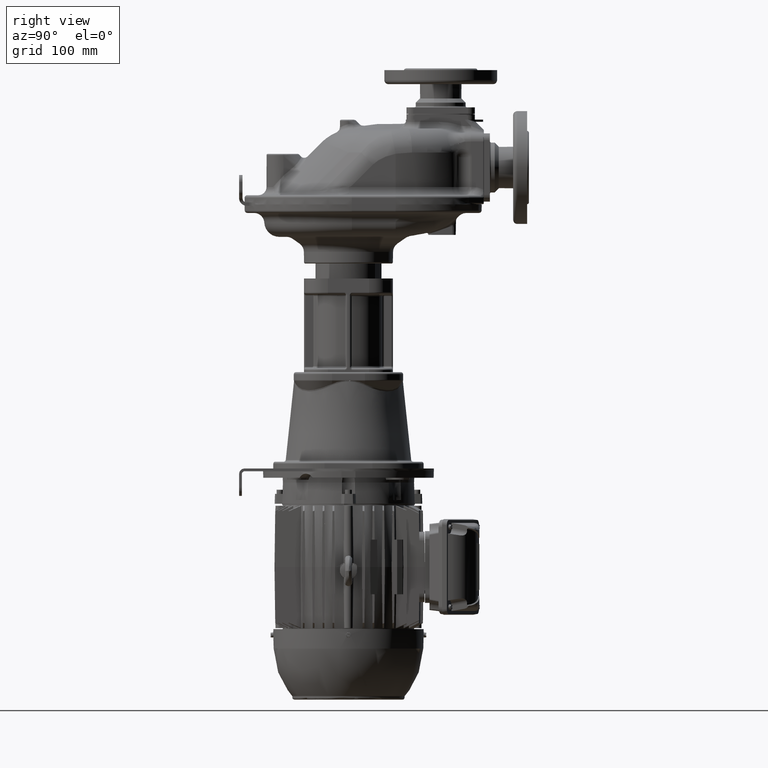
[diagram: clean part render]
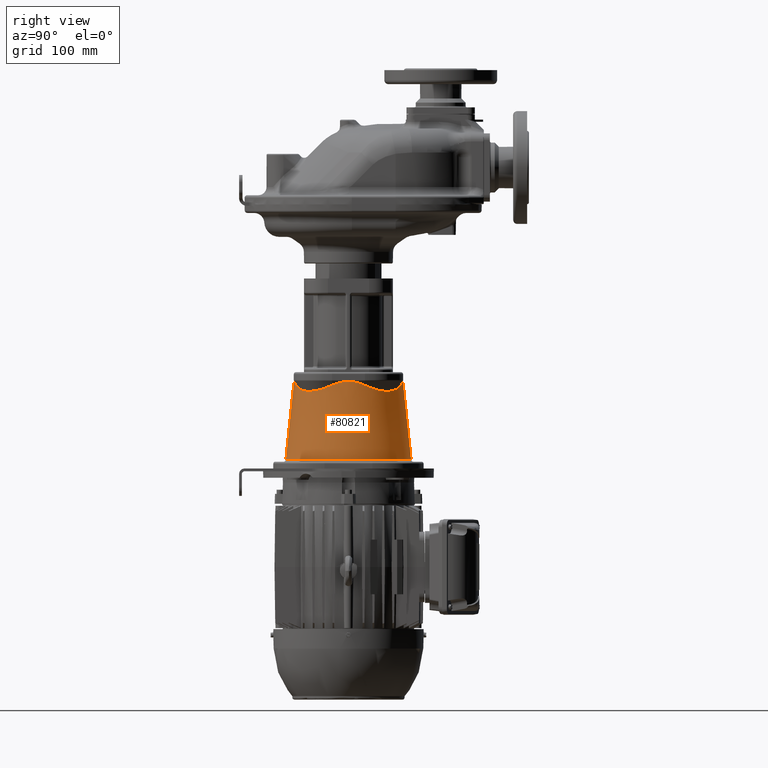
[diagram: same view with one face highlighted and labeled with its STEP entity id]
A machine part, right view. The second image highlights one B-rep face of the part: STEP entity #80821.
In plain terms, the highlighted conical surface has half-angle 6 deg.
Its self-contained STEP definition (entity closure, byte-faithful):
#13734=DIRECTION('',(0.E0,1.045284632720E-1,9.945218953678E-1));
#13735=VECTOR('',#13734,1.154727786723E2);
#13736=CARTESIAN_POINT('',(-4.174019513032E-14,-9.175620440373E1,
-3.773135853898E2));
#13737=LINE('',#13736,#13735);
#13738=CARTESIAN_POINT('',(9.448413889804E0,-7.923357628492E1,
-2.635097378124E2));
#13739=CARTESIAN_POINT('',(8.944865390985E0,-7.928397269742E1,
-2.634185644123E2));
#13740=CARTESIAN_POINT('',(7.981260820815E0,-7.937131314393E1,
-2.632495163003E2));
#13741=CARTESIAN_POINT('',(6.667328633573E0,-7.946941529494E1,
-2.630379740285E2));
#13742=CARTESIAN_POINT('',(5.484209309624E0,-7.954129156414E1,
-2.628680613803E2));
#13743=CARTESIAN_POINT('',(4.415192710407E0,-7.959335688235E1,
-2.627353220893E2));
#13744=CARTESIAN_POINT('',(3.434843384792E0,-7.963072188398E1,
-2.626341095028E2));
#13745=CARTESIAN_POINT('',(2.521193531791E0,-7.965686252494E1,
-2.625598937228E2));
#13746=CARTESIAN_POINT('',(1.654426537029E0,-7.967411147134E1,
-2.625092116402E2));
#13747=CARTESIAN_POINT('',(8.171873724442E-1,-7.968392373610E1,
-2.624797247375E2));
#13748=CARTESIAN_POINT('',(2.700712224523E-1,-7.968601232285E1,
-2.624733789962E2));
#13749=CARTESIAN_POINT('',(0.E0,-7.968601229936E1,-2.624733786812E2));
#13751=CARTESIAN_POINT('',(2.313970011329E1,-7.684120001109E1,
-2.678365913313E2));
#13752=CARTESIAN_POINT('',(2.274491774257E1,-7.694039552599E1,
-2.676572296166E2));
#13753=CARTESIAN_POINT('',(2.195793422997E1,-7.713274968255E1,
-2.673094110638E2));
#13754=CARTESIAN_POINT('',(2.078604550276E1,-7.740344576012E1,
-2.668199054467E2));
#13755=CARTESIAN_POINT('',(1.962221587909E1,-7.765689667984E1,
-2.663615607914E2));
#13756=CARTESIAN_POINT('',(1.846615493525E1,-7.789359695793E1,
-2.659334867523E2));
#13757=CARTESIAN_POINT('',(1.731743377083E1,-7.811403878783E1,
-2.655347978903E2));
#13758=CARTESIAN_POINT('',(1.617565291413E1,-7.831867240501E1,
-2.651646836034E2));
#13759=CARTESIAN_POINT('',(1.504040862414E1,-7.850791668127E1,
-2.648223900599E2));
#13760=CARTESIAN_POINT('',(1.391125331790E1,-7.868216465466E1,
-2.645072092538E2));
#13761=CARTESIAN_POINT('',(1.278783651194E1,-7.884176415054E1,
-2.642185150244E2));
#13762=CARTESIAN_POINT('',(1.166963719120E1,-7.898705715766E1,
-2.639556907804E2));
#13763=CARTESIAN_POINT('',(1.055628288678E1,-7.911833430233E1,
-2.637182137603E2));
#13764=CARTESIAN_POINT('',(9.817150191519E0,-7.919667194758E1,
-2.635764993014E2));
#13765=CARTESIAN_POINT('',(9.448413889804E0,-7.923357628492E1,
-2.635097378124E2));
#13767=CARTESIAN_POINT('',(7.684120001117E1,-2.313970011331E1,
-2.678365913312E2));
#13768=CARTESIAN_POINT('',(7.671763376627E1,-2.363147390947E1,
-2.680600192820E2));
#13769=CARTESIAN_POINT('',(7.646172203402E1,-2.460779515536E1,
-2.684983263072E2));
#13770=CARTESIAN_POINT('',(7.605253146579E1,-2.605008068724E1,
-2.691300484272E2));
#13771=CARTESIAN_POINT('',(7.561893479061E1,-2.747002089464E1,
-2.697361198877E2));
#13772=CARTESIAN_POINT('',(7.516185256211E1,-2.886742068809E1,
-2.703166209158E2));
#13773=CARTESIAN_POINT('',(7.468217152596E1,-3.024217188916E1,
-2.708716807236E2));
#13774=CARTESIAN_POINT('',(7.418072507685E1,-3.159428036620E1,
-2.714014848061E2));
#13775=CARTESIAN_POINT('',(7.365831712722E1,-3.292378207235E1,
-2.719062372455E2));
#13776=CARTESIAN_POINT('',(7.311570378033E1,-3.423078353565E1,
-2.723861751111E2));
#13777=CARTESIAN_POINT('',(7.255359655863E1,-3.551544011220E1,
-2.728415568823E2));
#13778=CARTESIAN_POINT('',(7.197266044798E1,-3.677795216226E1,
-2.732726586269E2));
#13779=CARTESIAN_POINT('',(7.137351147777E1,-3.801856211141E1,
-2.736797703323E2));
#13780=CARTESIAN_POINT('',(7.075671686855E1,-3.923754698333E1,
-2.740631908921E2));
#13781=CARTESIAN_POINT('',(7.012279422579E1,-4.043521417859E1,
-2.744232247350E2));
#13782=CARTESIAN_POINT('',(6.947221163011E1,-4.161189608840E1,
-2.747601777472E2));
#13783=CARTESIAN_POINT('',(6.880538779571E1,-4.276794546425E1,
-2.750743537889E2));
#13784=CARTESIAN_POINT('',(6.812269252375E1,-4.390373092713E1,
-2.753660514631E2));
#13785=CARTESIAN_POINT('',(6.742444735643E1,-4.501963272618E1,
-2.756355610693E2));
#13786=CARTESIAN_POINT('',(6.671092676160E1,-4.611603834752E1,
-2.758831623700E2));
#13787=CARTESIAN_POINT('',(6.598235892279E1,-4.719333910555E1,
-2.761091220044E2));
#13788=CARTESIAN_POINT('',(6.523892699136E1,-4.825192644493E1,
-2.763136911565E2));
#13789=CARTESIAN_POINT('',(6.448077033492E1,-4.929218868331E1,
-2.764971036456E2));
#13790=CARTESIAN_POINT('',(6.370798577346E1,-5.031450805999E1,
-2.766595741377E2));
#13791=CARTESIAN_POINT('',(6.292062927522E1,-5.131925756626E1,
-2.768012970623E2));
#13792=CARTESIAN_POINT('',(6.211871731898E1,-5.230679844082E1,
-2.769224454561E2));
#13793=CARTESIAN_POINT('',(6.130222830068E1,-5.327747770535E1,
-2.770231694082E2));
#13794=CARTESIAN_POINT('',(6.047110406697E1,-5.423162583006E1,
-2.771035952439E2));
#13795=CARTESIAN_POINT('',(5.962525148923E1,-5.516955449105E1,
-2.771638246925E2));
#13796=CARTESIAN_POINT('',(5.876454431134E1,-5.609155424491E1,
-2.772039344654E2));
#13797=CARTESIAN_POINT('',(5.788882422107E1,-5.699789323294E1,
-2.772239764265E2));
#13798=CARTESIAN_POINT('',(5.699790278925E1,-5.788881483098E1,
-2.772239765356E2));
#13799=CARTESIAN_POINT('',(5.609156343654E1,-5.876453558912E1,
-2.772039347734E2));
#13800=CARTESIAN_POINT('',(5.516956313835E1,-5.962524356203E1,
-2.771638251639E2));
#13801=CARTESIAN_POINT('',(5.423163397162E1,-6.047109685725E1,
-2.771035958525E2));
#13802=CARTESIAN_POINT('',(5.327748532113E1,-6.130222178804E1,
-2.770231701286E2));
#13803=CARTESIAN_POINT('',(5.230680552059E1,-6.211871147390E1,
-2.769224462624E2));
#13804=CARTESIAN_POINT('',(5.131926410906E1,-6.292062406192E1,
-2.768012979301E2));
#13805=CARTESIAN_POINT('',(5.031451406265E1,-6.370798115920E1,
-2.766595750428E2));
#13806=CARTESIAN_POINT('',(4.929219414889E1,-6.448076628340E1,
-2.764971045650E2));
#13807=CARTESIAN_POINT('',(4.825193137930E1,-6.523892346618E1,
-2.763136920714E2));
#13808=CARTESIAN_POINT('',(4.719334351729E1,-6.598235588718E1,
-2.761091228968E2));
#13809=CARTESIAN_POINT('',(4.611604224882E1,-6.671092417801E1,
-2.758831632233E2));
#13810=CARTESIAN_POINT('',(4.501963613323E1,-6.742444518661E1,
-2.756355618689E2));
#13811=CARTESIAN_POINT('',(4.390373385953E1,-6.812269072931E1,
-2.753660521963E2));
#13812=CARTESIAN_POINT('',(4.276794794384E1,-6.880538633928E1,
-2.750743544463E2));
#13813=CARTESIAN_POINT('',(4.161189814075E1,-6.947221047444E1,
-2.747601783221E2));
#13814=CARTESIAN_POINT('',(4.043521583227E1,-7.012279333429E1,
-2.744232252225E2));
#13815=CARTESIAN_POINT('',(3.923754826985E1,-7.075671620554E1,
-2.740631912899E2));
#13816=CARTESIAN_POINT('',(3.801856306556E1,-7.137351100852E1,
-2.736797706404E2));
#13817=CARTESIAN_POINT('',(3.677795282115E1,-7.197266013944E1,
-2.732726588486E2));
#13818=CARTESIAN_POINT('',(3.551544051465E1,-7.255359637983E1,
-2.728415570234E2));
#13819=CARTESIAN_POINT('',(3.423078372171E1,-7.311570370248E1,
-2.723861751792E2));
#13820=CARTESIAN_POINT('',(3.292378208579E1,-7.365831712291E1,
-2.719062372512E2));
#13821=CARTESIAN_POINT('',(3.159428025172E1,-7.418072512133E1,
-2.714014847623E2));
#13822=CARTESIAN_POINT('',(3.024217168829E1,-7.468217159870E1,
-2.708716806438E2));
#13823=CARTESIAN_POINT('',(2.886742044951E1,-7.516185264279E1,
-2.703166208183E2));
#13824=CARTESIAN_POINT('',(2.747002067881E1,-7.561893485854E1,
-2.697361197965E2));
#13825=CARTESIAN_POINT('',(2.605008048906E1,-7.605253152437E1,
-2.691300483418E2));
#13826=CARTESIAN_POINT('',(2.460779493984E1,-7.646172209216E1,
-2.684983262107E2));
#13827=CARTESIAN_POINT('',(2.363147382289E1,-7.671763378837E1,
-2.680600192437E2));
#13828=CARTESIAN_POINT('',(2.313970011329E1,-7.684120001109E1,
-2.678365913313E2));
#13830=CARTESIAN_POINT('',(7.923357628491E1,-9.448413889803E0,
-2.635097378124E2));
#13831=CARTESIAN_POINT('',(7.919667194939E1,-9.817150174091E0,
-2.635764992979E2));
#13832=CARTESIAN_POINT('',(7.911833430792E1,-1.055628283503E1,
-2.637182137504E2));
#13833=CARTESIAN_POINT('',(7.898705716949E1,-1.166963709380E1,
-2.639556907587E2));
#13834=CARTESIAN_POINT('',(7.884176417049E1,-1.278783636453E1,
-2.642185149885E2));
#13835=CARTESIAN_POINT('',(7.868216467532E1,-1.391125317952E1,
-2.645072092163E2));
#13836=CARTESIAN_POINT('',(7.850791669515E1,-1.504040853912E1,
-2.648223900350E2));
#13837=CARTESIAN_POINT('',(7.831867241037E1,-1.617565288498E1,
-2.651646835937E2));
#13838=CARTESIAN_POINT('',(7.811403877834E1,-1.731743382326E1,
-2.655347979074E2));
#13839=CARTESIAN_POINT('',(7.789359693780E1,-1.846615503854E1,
-2.659334867884E2));
#13840=CARTESIAN_POINT('',(7.765689663319E1,-1.962221610224E1,
-2.663615608762E2));
#13841=CARTESIAN_POINT('',(7.740344570125E1,-2.078604576441E1,
-2.668199055527E2));
#13842=CARTESIAN_POINT('',(7.713274964367E1,-2.195793439041E1,
-2.673094111348E2));
#13843=CARTESIAN_POINT('',(7.694039551072E1,-2.274491780505E1,
-2.676572296437E2));
#13844=CARTESIAN_POINT('',(7.684120001117E1,-2.313970011331E1,
-2.678365913312E2));
#13846=CARTESIAN_POINT('',(7.923357628456E1,9.448413889761E0,
-2.635097378125E2));
#13847=CARTESIAN_POINT('',(7.928689449168E1,8.915671914472E0,
-2.634132790041E2));
#13848=CARTESIAN_POINT('',(7.937848935146E1,7.898766737526E0,
-2.632352309853E2));
#13849=CARTESIAN_POINT('',(7.947954581984E1,6.519889597097E0,
-2.630151985128E2));
#13850=CARTESIAN_POINT('',(7.955200329106E1,5.288015927278E0,
-2.628416776922E2));
#13851=CARTESIAN_POINT('',(7.960346977963E1,4.178723952025E0,
-2.627085788158E2));
#13852=CARTESIAN_POINT('',(7.963953788033E1,3.162816631961E0,
-2.626094773983E2));
#13853=CARTESIAN_POINT('',(7.966394465011E1,2.214508611121E0,
-2.625392869282E2));
#13854=CARTESIAN_POINT('',(7.967907333241E1,1.311420479860E0,
-2.624943743207E2));
#13855=CARTESIAN_POINT('',(7.968631609622E1,4.343102093750E-1,
-2.624724669255E2));
#13856=CARTESIAN_POINT('',(7.968631604881E1,-4.343219626638E-1,
-2.624724670813E2));
#13857=CARTESIAN_POINT('',(7.967907318655E1,-1.311432348766E0,
-2.624943747868E2));
#13858=CARTESIAN_POINT('',(7.966394439482E1,-2.214520738800E0,
-2.625392876879E2));
#13859=CARTESIAN_POINT('',(7.963953748288E1,-3.162829734417E0,
-2.626094785082E2));
#13860=CARTESIAN_POINT('',(7.960346919087E1,-4.178738330481E0,
-2.627085803802E2));
#13861=CARTESIAN_POINT('',(7.955200250754E1,-5.288031067866E0,
-2.628416796608E2));
#13862=CARTESIAN_POINT('',(7.947954466161E1,-6.519906846246E0,
-2.630152011394E2));
#13863=CARTESIAN_POINT('',(7.937848865107E1,-7.898774652268E0,
-2.632352323851E2));
#13864=CARTESIAN_POINT('',(7.928689419822E1,-8.915674843036E0,
-2.634132795150E2));
#13865=CARTESIAN_POINT('',(7.923357628491E1,-9.448413889803E0,
-2.635097378124E2));
#13867=CARTESIAN_POINT('',(7.684120001110E1,2.313970011329E1,
-2.678365913313E2));
#13868=CARTESIAN_POINT('',(7.694039552557E1,2.274491774424E1,
-2.676572296174E2));
#13869=CARTESIAN_POINT('',(7.713274968150E1,2.195793423435E1,
-2.673094110657E2));
#13870=CARTESIAN_POINT('',(7.740344575874E1,2.078604550890E1,
-2.668199054492E2));
#13871=CARTESIAN_POINT('',(7.765689667842E1,1.962221588581E1,
-2.663615607940E2));
#13872=CARTESIAN_POINT('',(7.789359695642E1,1.846615494286E1,
-2.659334867550E2));
#13873=CARTESIAN_POINT('',(7.811403878616E1,1.731743377977E1,
-2.655347978933E2));
#13874=CARTESIAN_POINT('',(7.831867240334E1,1.617565292378E1,
-2.651646836064E2));
#13875=CARTESIAN_POINT('',(7.850791667957E1,1.504040863473E1,
-2.648223900630E2));
#13876=CARTESIAN_POINT('',(7.868216465296E1,1.391125332938E1,
-2.645072092569E2));
#13877=CARTESIAN_POINT('',(7.884176414923E1,1.278783652165E1,
-2.642185150268E2));
#13878=CARTESIAN_POINT('',(7.898705715608E1,1.166963720350E1,
-2.639556907832E2));
#13879=CARTESIAN_POINT('',(7.911833430150E1,1.055628289595E1,
-2.637182137621E2));
#13880=CARTESIAN_POINT('',(7.919667194685E1,9.817150195125E0,
-2.635764993021E2));
#13881=CARTESIAN_POINT('',(7.923357628456E1,9.448413889761E0,
-2.635097378125E2));
#13883=CARTESIAN_POINT('',(2.313970011332E1,7.684120001116E1,
-2.678365913313E2));
#13884=CARTESIAN_POINT('',(2.363147390936E1,7.671763376630E1,
-2.680600192819E2));
#13885=CARTESIAN_POINT('',(2.460779515510E1,7.646172203409E1,
-2.684983263071E2));
#13886=CARTESIAN_POINT('',(2.605008068711E1,7.605253146583E1,
-2.691300484272E2));
#13887=CARTESIAN_POINT('',(2.747002089454E1,7.561893479064E1,
-2.697361198876E2));
#13888=CARTESIAN_POINT('',(2.886742068797E1,7.516185256215E1,
-2.703166209157E2));
#13889=CARTESIAN_POINT('',(3.024217188903E1,7.468217152601E1,
-2.708716807235E2));
#13890=CARTESIAN_POINT('',(3.159428036614E1,7.418072507687E1,
-2.714014848061E2));
#13891=CARTESIAN_POINT('',(3.292378207240E1,7.365831712720E1,
-2.719062372455E2));
#13892=CARTESIAN_POINT('',(3.423078353564E1,7.311570378033E1,
-2.723861751111E2));
#13893=CARTESIAN_POINT('',(3.551544011216E1,7.255359655865E1,
-2.728415568823E2));
#13894=CARTESIAN_POINT('',(3.677795216228E1,7.197266044797E1,
-2.732726586269E2));
#13895=CARTESIAN_POINT('',(3.801856211126E1,7.137351147784E1,
-2.736797703322E2));
#13896=CARTESIAN_POINT('',(3.923754698314E1,7.075671686865E1,
-2.740631908920E2));
#13897=CARTESIAN_POINT('',(4.043521417848E1,7.012279422585E1,
-2.744232247349E2));
#13898=CARTESIAN_POINT('',(4.161189608826E1,6.947221163019E1,
-2.747601777472E2));
#13899=CARTESIAN_POINT('',(4.276794546405E1,6.880538779582E1,
-2.750743537889E2));
#13900=CARTESIAN_POINT('',(4.390373092718E1,6.812269252372E1,
-2.753660514631E2));
#13901=CARTESIAN_POINT('',(4.501963272600E1,6.742444735654E1,
-2.756355610692E2));
#13902=CARTESIAN_POINT('',(4.611603834717E1,6.671092676183E1,
-2.758831623699E2));
#13903=CARTESIAN_POINT('',(4.719333910537E1,6.598235892292E1,
-2.761091220044E2));
#13904=CARTESIAN_POINT('',(4.825192644479E1,6.523892699145E1,
-2.763136911565E2));
#13905=CARTESIAN_POINT('',(4.929218868291E1,6.448077033521E1,
-2.764971036455E2));
#13906=CARTESIAN_POINT('',(5.031450805994E1,6.370798577350E1,
-2.766595741377E2));
#13907=CARTESIAN_POINT('',(5.131925756627E1,6.292062927521E1,
-2.768012970623E2));
#13908=CARTESIAN_POINT('',(5.230679844048E1,6.211871731925E1,
-2.769224454560E2));
#13909=CARTESIAN_POINT('',(5.327747770496E1,6.130222830101E1,
-2.770231694081E2));
#13910=CARTESIAN_POINT('',(5.423162582996E1,6.047110406706E1,
-2.771035952439E2));
#13911=CARTESIAN_POINT('',(5.516955449072E1,5.962525148953E1,
-2.771638246924E2));
#13912=CARTESIAN_POINT('',(5.609155424441E1,5.876454431182E1,
-2.772039344654E2));
#13913=CARTESIAN_POINT('',(5.699789323292E1,5.788882422110E1,
-2.772239764265E2));
#13914=CARTESIAN_POINT('',(5.788881483096E1,5.699790278927E1,
-2.772239765356E2));
#13915=CARTESIAN_POINT('',(5.876453558867E1,5.609156343701E1,
-2.772039347734E2));
#13916=CARTESIAN_POINT('',(5.962524356177E1,5.516956313864E1,
-2.771638251639E2));
#13917=CARTESIAN_POINT('',(6.047109685721E1,5.423163397167E1,
-2.771035958525E2));
#13918=CARTESIAN_POINT('',(6.130222178774E1,5.327748532148E1,
-2.770231701286E2));
#13919=CARTESIAN_POINT('',(6.211871147365E1,5.230680552090E1,
-2.769224462624E2));
#13920=CARTESIAN_POINT('',(6.292062406195E1,5.131926410903E1,
-2.768012979301E2));
#13921=CARTESIAN_POINT('',(6.370798115917E1,5.031451406269E1,
-2.766595750428E2));
#13922=CARTESIAN_POINT('',(6.448076628312E1,4.929219414927E1,
-2.764971045651E2));
#13923=CARTESIAN_POINT('',(6.523892346610E1,4.825193137941E1,
-2.763136920714E2));
#13924=CARTESIAN_POINT('',(6.598235588708E1,4.719334351744E1,
-2.761091228968E2));
#13925=CARTESIAN_POINT('',(6.671092417780E1,4.611604224914E1,
-2.758831632234E2));
#13926=CARTESIAN_POINT('',(6.742444518651E1,4.501963613339E1,
-2.756355618690E2));
#13927=CARTESIAN_POINT('',(6.812269072934E1,4.390373385947E1,
-2.753660521962E2));
#13928=CARTESIAN_POINT('',(6.880538633918E1,4.276794794402E1,
-2.750743544464E2));
#13929=CARTESIAN_POINT('',(6.947221047437E1,4.161189814088E1,
-2.747601783221E2));
#13930=CARTESIAN_POINT('',(7.012279333423E1,4.043521583237E1,
-2.744232252225E2));
#13931=CARTESIAN_POINT('',(7.075671620544E1,3.923754827004E1,
-2.740631912899E2));
#13932=CARTESIAN_POINT('',(7.137351100846E1,3.801856306569E1,
-2.736797706405E2));
#13933=CARTESIAN_POINT('',(7.197266013945E1,3.677795282113E1,
-2.732726588486E2));
#13934=CARTESIAN_POINT('',(7.255359637981E1,3.551544051469E1,
-2.728415570234E2));
#13935=CARTESIAN_POINT('',(7.311570370248E1,3.423078372172E1,
-2.723861751792E2));
#13936=CARTESIAN_POINT('',(7.365831712294E1,3.292378208574E1,
-2.719062372512E2));
#13937=CARTESIAN_POINT('',(7.418072512131E1,3.159428025177E1,
-2.714014847623E2));
#13938=CARTESIAN_POINT('',(7.468217159865E1,3.024217168841E1,
-2.708716806439E2));
#13939=CARTESIAN_POINT('',(7.516185264275E1,2.886742044963E1,
-2.703166208184E2));
#13940=CARTESIAN_POINT('',(7.561893485851E1,2.747002067891E1,
-2.697361197965E2));
#13941=CARTESIAN_POINT('',(7.605253152433E1,2.605008048920E1,
-2.691300483419E2));
#13942=CARTESIAN_POINT('',(7.646172209209E1,2.460779494012E1,
-2.684983262108E2));
#13943=CARTESIAN_POINT('',(7.671763378834E1,2.363147382301E1,
-2.680600192437E2));
#13944=CARTESIAN_POINT('',(7.684120001110E1,2.313970011329E1,
-2.678365913313E2));
#13946=CARTESIAN_POINT('',(9.448413889852E0,7.923357628533E1,
-2.635097378124E2));
#13947=CARTESIAN_POINT('',(9.817150170483E0,7.919667195017E1,
-2.635764992972E2));
#13948=CARTESIAN_POINT('',(1.055628282585E1,7.911833430873E1,
-2.637182137486E2));
#13949=CARTESIAN_POINT('',(1.166963708150E1,7.898705717107E1,
-2.639556907559E2));
#13950=CARTESIAN_POINT('',(1.278783635483E1,7.884176417180E1,
-2.642185149861E2));
#13951=CARTESIAN_POINT('',(1.391125316805E1,7.868216467702E1,
-2.645072092133E2));
#13952=CARTESIAN_POINT('',(1.504040852853E1,7.850791669686E1,
-2.648223900319E2));
#13953=CARTESIAN_POINT('',(1.617565287533E1,7.831867241204E1,
-2.651646835907E2));
#13954=CARTESIAN_POINT('',(1.731743381433E1,7.811403878E1,-2.655347979044E2));
#13955=CARTESIAN_POINT('',(1.846615503093E1,7.789359693931E1,
-2.659334867857E2));
#13956=CARTESIAN_POINT('',(1.962221609551E1,7.765689663461E1,
-2.663615608736E2));
#13957=CARTESIAN_POINT('',(2.078604575825E1,7.740344570264E1,
-2.668199055501E2));
#13958=CARTESIAN_POINT('',(2.195793438600E1,7.713274964473E1,
-2.673094111329E2));
#13959=CARTESIAN_POINT('',(2.274491780337E1,7.694039551115E1,
-2.676572296430E2));
#13960=CARTESIAN_POINT('',(2.313970011332E1,7.684120001116E1,
-2.678365913313E2));
#13962=CARTESIAN_POINT('',(-1.476329341194E-14,7.968601229936E1,
-2.624733786812E2));
#13963=CARTESIAN_POINT('',(2.700761855400E-1,7.968601233353E1,
-2.624733791131E2));
#13964=CARTESIAN_POINT('',(8.172017403881E-1,7.968392370900E1,
-2.624797247106E2));
#13965=CARTESIAN_POINT('',(1.654480761690E0,7.967411065917E1,
-2.625092140426E2));
#13966=CARTESIAN_POINT('',(2.521231413653E0,7.965686150717E1,
-2.625598966211E2));
#13967=CARTESIAN_POINT('',(3.434851743570E0,7.963072153949E1,
-2.626341104390E2));
#13968=CARTESIAN_POINT('',(4.415191703796E0,7.959335692413E1,
-2.627353219932E2));
#13969=CARTESIAN_POINT('',(5.484210444754E0,7.954129150888E1,
-2.628680615098E2));
#13970=CARTESIAN_POINT('',(6.667331703840E0,7.946941510569E1,
-2.630379744460E2));
#13971=CARTESIAN_POINT('',(7.981268710266E0,7.937131249330E1,
-2.632495176348E2));
#13972=CARTESIAN_POINT('',(8.944868764927E0,7.928397235928E1,
-2.634185650008E2));
#13973=CARTESIAN_POINT('',(9.448413889852E0,7.923357628533E1,
-2.635097378124E2));
#13975=DIRECTION('',(0.E0,-1.045284632720E-1,9.945218953678E-1));
#13976=VECTOR('',#13975,1.154727786723E2);
#13977=CARTESIAN_POINT('',(0.E0,9.175620440373E1,-3.773135853898E2));
#13978=LINE('',#13977,#13976);
#13979=CARTESIAN_POINT('',(-1.437753438200E-14,4.318027762775E-14,
-3.773135853898E2));
#13980=DIRECTION('',(0.E0,0.E0,1.E0));
#13981=DIRECTION('',(0.E0,-1.E0,0.E0));
#13982=AXIS2_PLACEMENT_3D('',#13979,#13980,#13981);
#54272=CARTESIAN_POINT('',(-1.463296363993E-14,9.175620440373E1,
-3.773135853898E2));
#54273=VERTEX_POINT('',#54272);
#54376=VERTEX_POINT('',#13962);
#54377=VERTEX_POINT('',#13973);
#54379=VERTEX_POINT('',#13960);
#54381=VERTEX_POINT('',#13944);
#54383=VERTEX_POINT('',#13881);
#54385=VERTEX_POINT('',#13865);
#54387=VERTEX_POINT('',#13844);
#54389=VERTEX_POINT('',#13828);
#54391=VERTEX_POINT('',#13765);
#54393=VERTEX_POINT('',#13749);
#54406=CARTESIAN_POINT('',(0.E0,-9.175620440373E1,-3.773135853898E2));
#54407=VERTEX_POINT('',#54406);
#80801=CARTESIAN_POINT('',(-1.437753438200E-14,3.263229768030E-14,
-3.198930569849E2));
#80802=DIRECTION('',(0.E0,0.E0,-1.E0));
#80803=DIRECTION('',(0.E0,-1.E0,0.E0));
#80804=AXIS2_PLACEMENT_3D('',#80801,#80802,#80803);
#80805=CONICAL_SURFACE('',#80804,8.572106367719E1,6.E0);
#80807=ORIENTED_EDGE('',*,*,#80806,.F.);
#80808=ORIENTED_EDGE('',*,*,#80775,.T.);
#80809=ORIENTED_EDGE('',*,*,#79559,.F.);
#80810=ORIENTED_EDGE('',*,*,#79630,.F.);
#80811=ORIENTED_EDGE('',*,*,#79892,.F.);
#80812=ORIENTED_EDGE('',*,*,#79962,.F.);
#80813=ORIENTED_EDGE('',*,*,#80100,.F.);
#80814=ORIENTED_EDGE('',*,*,#80170,.F.);
#80815=ORIENTED_EDGE('',*,*,#80432,.F.);
#80816=ORIENTED_EDGE('',*,*,#80502,.F.);
#80817=ORIENTED_EDGE('',*,*,#80609,.F.);
#80818=ORIENTED_EDGE('',*,*,#80779,.F.);
#80819=EDGE_LOOP('',(#80807,#80808,#80809,#80810,#80811,#80812,#80813,#80814,
#80815,#80816,#80817,#80818));
#80820=FACE_OUTER_BOUND('',#80819,.F.);
#13750=B_SPLINE_CURVE_WITH_KNOTS('',3,(#13738,#13739,#13740,#13741,#13742,
#13743,#13744,#13745,#13746,#13747,#13748,#13749),.UNSPECIFIED.,.F.,.F.,(4,1,1,
1,1,1,1,1,1,4),(0.E0,1.111111111111E-1,2.222222222222E-1,3.333333333333E-1,
4.444444444444E-1,5.555555555556E-1,6.666666666667E-1,7.777777777778E-1,
8.888888888889E-1,1.E0),.UNSPECIFIED.);
#13766=B_SPLINE_CURVE_WITH_KNOTS('',3,(#13751,#13752,#13753,#13754,#13755,
#13756,#13757,#13758,#13759,#13760,#13761,#13762,#13763,#13764,#13765),
.UNSPECIFIED.,.F.,.F.,(4,1,1,1,1,1,1,1,1,1,1,1,4),(0.E0,8.333333333333E-2,
1.666666666667E-1,2.5E-1,3.333333333333E-1,4.166666666667E-1,5.E-1,
5.833333333333E-1,6.666666666667E-1,7.5E-1,8.333333333333E-1,9.166666666667E-1,
1.E0),.UNSPECIFIED.);
#13829=B_SPLINE_CURVE_WITH_KNOTS('',3,(#13767,#13768,#13769,#13770,#13771,
#13772,#13773,#13774,#13775,#13776,#13777,#13778,#13779,#13780,#13781,#13782,
#13783,#13784,#13785,#13786,#13787,#13788,#13789,#13790,#13791,#13792,#13793,
#13794,#13795,#13796,#13797,#13798,#13799,#13800,#13801,#13802,#13803,#13804,
#13805,#13806,#13807,#13808,#13809,#13810,#13811,#13812,#13813,#13814,#13815,
#13816,#13817,#13818,#13819,#13820,#13821,#13822,#13823,#13824,#13825,#13826,
#13827,#13828),.UNSPECIFIED.,.F.,.F.,(4,1,1,1,1,1,1,1,1,1,1,1,1,1,1,1,1,1,1,1,1,
1,1,1,1,1,1,1,1,1,1,1,1,1,1,1,1,1,1,1,1,1,1,1,1,1,1,1,1,1,1,1,1,1,1,1,1,1,1,4),(
0.E0,1.694915254237E-2,3.389830508475E-2,5.084745762712E-2,6.779661016949E-2,
8.474576271186E-2,1.016949152542E-1,1.186440677966E-1,1.355932203390E-1,
1.525423728814E-1,1.694915254237E-1,1.864406779661E-1,2.033898305085E-1,
2.203389830508E-1,2.372881355932E-1,2.542372881356E-1,2.711864406780E-1,
2.881355932203E-1,3.050847457627E-1,3.220338983051E-1,3.389830508475E-1,
3.559322033898E-1,3.728813559322E-1,3.898305084746E-1,4.067796610169E-1,
4.237288135593E-1,4.406779661017E-1,4.576271186441E-1,4.745762711864E-1,
4.915254237288E-1,5.084745762712E-1,5.254237288136E-1,5.423728813559E-1,
5.593220338983E-1,5.762711864407E-1,5.932203389831E-1,6.101694915254E-1,
6.271186440678E-1,6.440677966102E-1,6.610169491525E-1,6.779661016949E-1,
6.949152542373E-1,7.118644067797E-1,7.288135593220E-1,7.457627118644E-1,
7.627118644068E-1,7.796610169492E-1,7.966101694915E-1,8.135593220339E-1,
8.305084745763E-1,8.474576271186E-1,8.644067796610E-1,8.813559322034E-1,
8.983050847458E-1,9.152542372881E-1,9.322033898305E-1,9.491525423729E-1,
9.661016949153E-1,9.830508474576E-1,1.E0),.UNSPECIFIED.);
#13845=B_SPLINE_CURVE_WITH_KNOTS('',3,(#13830,#13831,#13832,#13833,#13834,
#13835,#13836,#13837,#13838,#13839,#13840,#13841,#13842,#13843,#13844),
.UNSPECIFIED.,.F.,.F.,(4,1,1,1,1,1,1,1,1,1,1,1,4),(0.E0,8.333333333333E-2,
1.666666666667E-1,2.5E-1,3.333333333333E-1,4.166666666667E-1,5.E-1,
5.833333333333E-1,6.666666666667E-1,7.5E-1,8.333333333333E-1,9.166666666667E-1,
1.E0),.UNSPECIFIED.);
#13866=B_SPLINE_CURVE_WITH_KNOTS('',3,(#13846,#13847,#13848,#13849,#13850,
#13851,#13852,#13853,#13854,#13855,#13856,#13857,#13858,#13859,#13860,#13861,
#13862,#13863,#13864,#13865),.UNSPECIFIED.,.F.,.F.,(4,1,1,1,1,1,1,1,1,1,1,1,1,1,
1,1,1,4),(0.E0,5.882352941176E-2,1.176470588235E-1,1.764705882353E-1,
2.352941176471E-1,2.941176470588E-1,3.529411764706E-1,4.117647058824E-1,
4.705882352941E-1,5.294117647059E-1,5.882352941176E-1,6.470588235294E-1,
7.058823529412E-1,7.647058823529E-1,8.235294117647E-1,8.823529411765E-1,
9.411764705882E-1,1.E0),.UNSPECIFIED.);
#13882=B_SPLINE_CURVE_WITH_KNOTS('',3,(#13867,#13868,#13869,#13870,#13871,
#13872,#13873,#13874,#13875,#13876,#13877,#13878,#13879,#13880,#13881),
.UNSPECIFIED.,.F.,.F.,(4,1,1,1,1,1,1,1,1,1,1,1,4),(0.E0,8.333333333333E-2,
1.666666666667E-1,2.5E-1,3.333333333333E-1,4.166666666667E-1,5.E-1,
5.833333333333E-1,6.666666666667E-1,7.5E-1,8.333333333333E-1,9.166666666667E-1,
1.E0),.UNSPECIFIED.);
#13945=B_SPLINE_CURVE_WITH_KNOTS('',3,(#13883,#13884,#13885,#13886,#13887,
#13888,#13889,#13890,#13891,#13892,#13893,#13894,#13895,#13896,#13897,#13898,
#13899,#13900,#13901,#13902,#13903,#13904,#13905,#13906,#13907,#13908,#13909,
#13910,#13911,#13912,#13913,#13914,#13915,#13916,#13917,#13918,#13919,#13920,
#13921,#13922,#13923,#13924,#13925,#13926,#13927,#13928,#13929,#13930,#13931,
#13932,#13933,#13934,#13935,#13936,#13937,#13938,#13939,#13940,#13941,#13942,
#13943,#13944),.UNSPECIFIED.,.F.,.F.,(4,1,1,1,1,1,1,1,1,1,1,1,1,1,1,1,1,1,1,1,1,
1,1,1,1,1,1,1,1,1,1,1,1,1,1,1,1,1,1,1,1,1,1,1,1,1,1,1,1,1,1,1,1,1,1,1,1,1,1,4),(
0.E0,1.694915254237E-2,3.389830508475E-2,5.084745762712E-2,6.779661016949E-2,
8.474576271186E-2,1.016949152542E-1,1.186440677966E-1,1.355932203390E-1,
1.525423728814E-1,1.694915254237E-1,1.864406779661E-1,2.033898305085E-1,
2.203389830508E-1,2.372881355932E-1,2.542372881356E-1,2.711864406780E-1,
2.881355932203E-1,3.050847457627E-1,3.220338983051E-1,3.389830508475E-1,
3.559322033898E-1,3.728813559322E-1,3.898305084746E-1,4.067796610169E-1,
4.237288135593E-1,4.406779661017E-1,4.576271186441E-1,4.745762711864E-1,
4.915254237288E-1,5.084745762712E-1,5.254237288136E-1,5.423728813559E-1,
5.593220338983E-1,5.762711864407E-1,5.932203389831E-1,6.101694915254E-1,
6.271186440678E-1,6.440677966102E-1,6.610169491525E-1,6.779661016949E-1,
6.949152542373E-1,7.118644067797E-1,7.288135593220E-1,7.457627118644E-1,
7.627118644068E-1,7.796610169492E-1,7.966101694915E-1,8.135593220339E-1,
8.305084745763E-1,8.474576271186E-1,8.644067796610E-1,8.813559322034E-1,
8.983050847458E-1,9.152542372881E-1,9.322033898305E-1,9.491525423729E-1,
9.661016949153E-1,9.830508474576E-1,1.E0),.UNSPECIFIED.);
#13961=B_SPLINE_CURVE_WITH_KNOTS('',3,(#13946,#13947,#13948,#13949,#13950,
#13951,#13952,#13953,#13954,#13955,#13956,#13957,#13958,#13959,#13960),
.UNSPECIFIED.,.F.,.F.,(4,1,1,1,1,1,1,1,1,1,1,1,4),(0.E0,8.333333333333E-2,
1.666666666667E-1,2.5E-1,3.333333333333E-1,4.166666666667E-1,5.E-1,
5.833333333333E-1,6.666666666667E-1,7.5E-1,8.333333333333E-1,9.166666666667E-1,
1.E0),.UNSPECIFIED.);
#13974=B_SPLINE_CURVE_WITH_KNOTS('',3,(#13962,#13963,#13964,#13965,#13966,
#13967,#13968,#13969,#13970,#13971,#13972,#13973),.UNSPECIFIED.,.F.,.F.,(4,1,1,
1,1,1,1,1,1,4),(0.E0,1.111111111111E-1,2.222222222222E-1,3.333333333333E-1,
4.444444444444E-1,5.555555555556E-1,6.666666666667E-1,7.777777777778E-1,
8.888888888889E-1,1.E0),.UNSPECIFIED.);
#13983=CIRCLE('',#13982,9.175620440373E1);
#79559=EDGE_CURVE('',#54391,#54393,#13750,.T.);
#79630=EDGE_CURVE('',#54389,#54391,#13766,.T.);
#79892=EDGE_CURVE('',#54387,#54389,#13829,.T.);
#79962=EDGE_CURVE('',#54385,#54387,#13845,.T.);
#80100=EDGE_CURVE('',#54383,#54385,#13866,.T.);
#80170=EDGE_CURVE('',#54381,#54383,#13882,.T.);
#80432=EDGE_CURVE('',#54379,#54381,#13945,.T.);
#80502=EDGE_CURVE('',#54377,#54379,#13961,.T.);
#80609=EDGE_CURVE('',#54376,#54377,#13974,.T.);
#80775=EDGE_CURVE('',#54407,#54393,#13737,.T.);
#80779=EDGE_CURVE('',#54273,#54376,#13978,.T.);
#80806=EDGE_CURVE('',#54407,#54273,#13983,.T.);
#80821=ADVANCED_FACE('',(#80820),#80805,.T.);